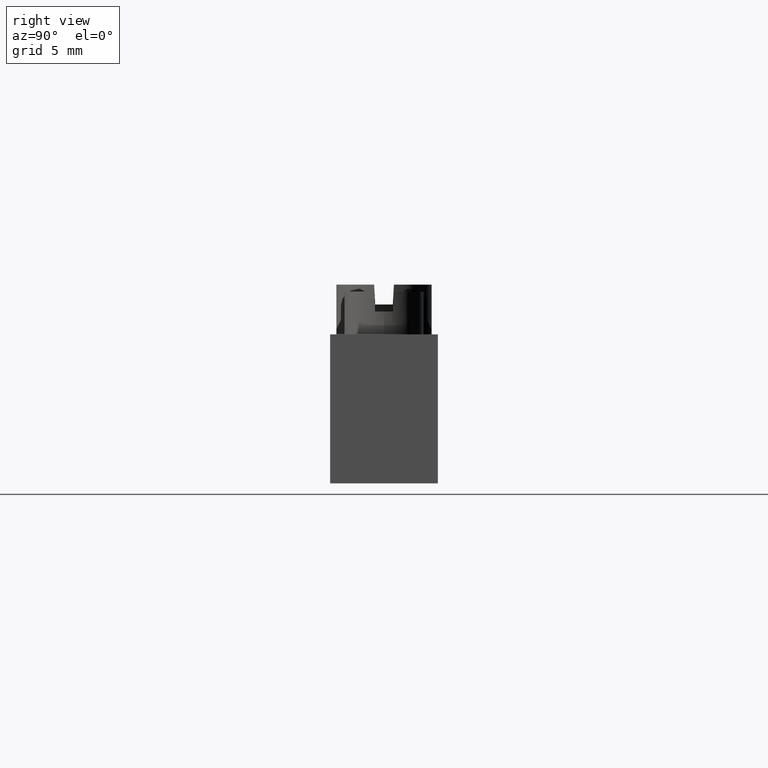
[diagram: clean part render]
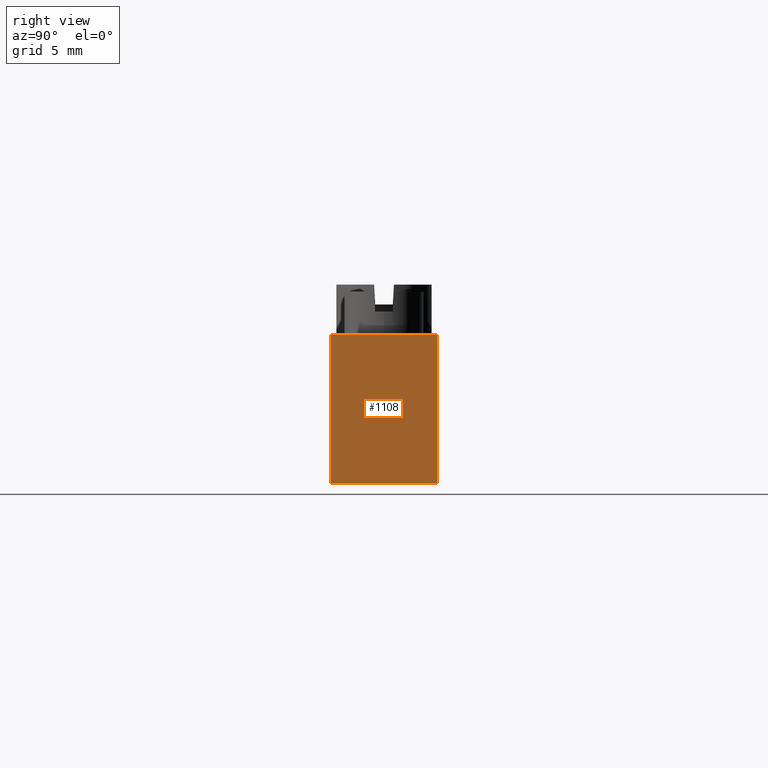
[diagram: same view with one face highlighted and labeled with its STEP entity id]
A machine part, right view. The second image highlights one B-rep face of the part: STEP entity #1108.
In plain terms, the highlighted planar face has unit normal (-1, 0, 0).
Its self-contained STEP definition (entity closure, byte-faithful):
#804 = CARTESIAN_POINT ( 'NONE',  ( 41.89999999999999900, 0.0000000000000000000, 0.0000000000000000000 ) ) ;
#813 = DIRECTION ( 'NONE',  ( 0.0000000000000000000, 1.000000000000000000, -0.0000000000000000000 ) ) ;
#819 = CARTESIAN_POINT ( 'NONE',  ( 41.89999999999999900, 0.0000000000000000000, 9.000000000000003600 ) ) ;
#823 = LINE ( 'NONE', #819, #1937 ) ;
#828 = DIRECTION ( 'NONE',  ( -0.0000000000000000000, -1.000000000000000000, 0.0000000000000000000 ) ) ;
#830 = LINE ( 'NONE', #804, #1874 ) ;
#882 = EDGE_LOOP ( 'NONE', ( #2863, #2859, #2822, #2840 ) ) ;
#1108 = ADVANCED_FACE ( 'NONE', ( #3524 ), #3515, .F. ) ;
#1358 = EDGE_CURVE ( 'NONE', #3049, #3055, #830, .T. ) ;
#1360 = EDGE_CURVE ( 'NONE', #3003, #3030, #823, .T. ) ;
#1388 = EDGE_CURVE ( 'NONE', #3030, #3049, #1753, .T. ) ;
#1421 = EDGE_CURVE ( 'NONE', #3003, #3055, #1964, .T. ) ;
#1557 = AXIS2_PLACEMENT_3D ( 'NONE', #3502, #3493, #3499 ) ;
#1753 = LINE ( 'NONE', #1775, #2008 ) ;
#1775 = CARTESIAN_POINT ( 'NONE',  ( 41.89999999999999900, 6.500000000000001800, 9.000000000000003600 ) ) ;
#1874 = VECTOR ( 'NONE', #828, 1000.000000000000000 ) ;
#1893 = DIRECTION ( 'NONE',  ( -0.0000000000000000000, -0.0000000000000000000, -1.000000000000000000 ) ) ;
#1937 = VECTOR ( 'NONE', #813, 1000.000000000000000 ) ;
#1942 = CARTESIAN_POINT ( 'NONE',  ( 41.89999999999999900, 0.0000000000000000000, 9.000000000000003600 ) ) ;
#1964 = LINE ( 'NONE', #1942, #2031 ) ;
#2008 = VECTOR ( 'NONE', #1893, 1000.000000000000000 ) ;
#2031 = VECTOR ( 'NONE', #2090, 1000.000000000000000 ) ;
#2090 = DIRECTION ( 'NONE',  ( -0.0000000000000000000, 0.0000000000000000000, -1.000000000000000000 ) ) ;
#2197 = CARTESIAN_POINT ( 'NONE',  ( 41.89999999999999900, 0.0000000000000000000, 9.000000000000003600 ) ) ;
#2228 = CARTESIAN_POINT ( 'NONE',  ( 41.89999999999999900, 6.500000000000001800, 0.0000000000000000000 ) ) ;
#2235 = CARTESIAN_POINT ( 'NONE',  ( 41.89999999999999900, 0.0000000000000000000, 0.0000000000000000000 ) ) ;
#2245 = CARTESIAN_POINT ( 'NONE',  ( 41.89999999999999900, 6.500000000000001800, 9.000000000000003600 ) ) ;
#2822 = ORIENTED_EDGE ( 'NONE', *, *, #1358, .F. ) ;
#2840 = ORIENTED_EDGE ( 'NONE', *, *, #1388, .F. ) ;
#2859 = ORIENTED_EDGE ( 'NONE', *, *, #1421, .T. ) ;
#2863 = ORIENTED_EDGE ( 'NONE', *, *, #1360, .F. ) ;
#3003 = VERTEX_POINT ( 'NONE', #2197 ) ;
#3030 = VERTEX_POINT ( 'NONE', #2245 ) ;
#3049 = VERTEX_POINT ( 'NONE', #2228 ) ;
#3055 = VERTEX_POINT ( 'NONE', #2235 ) ;
#3493 = DIRECTION ( 'NONE',  ( -1.000000000000000000, 0.0000000000000000000, 0.0000000000000000000 ) ) ;
#3499 = DIRECTION ( 'NONE',  ( 0.0000000000000000000, 0.0000000000000000000, 1.000000000000000000 ) ) ;
#3502 = CARTESIAN_POINT ( 'NONE',  ( 41.89999999999999900, 0.0000000000000000000, 9.000000000000003600 ) ) ;
#3515 = PLANE ( 'NONE',  #1557 ) ;
#3524 = FACE_OUTER_BOUND ( 'NONE', #882, .T. ) ;